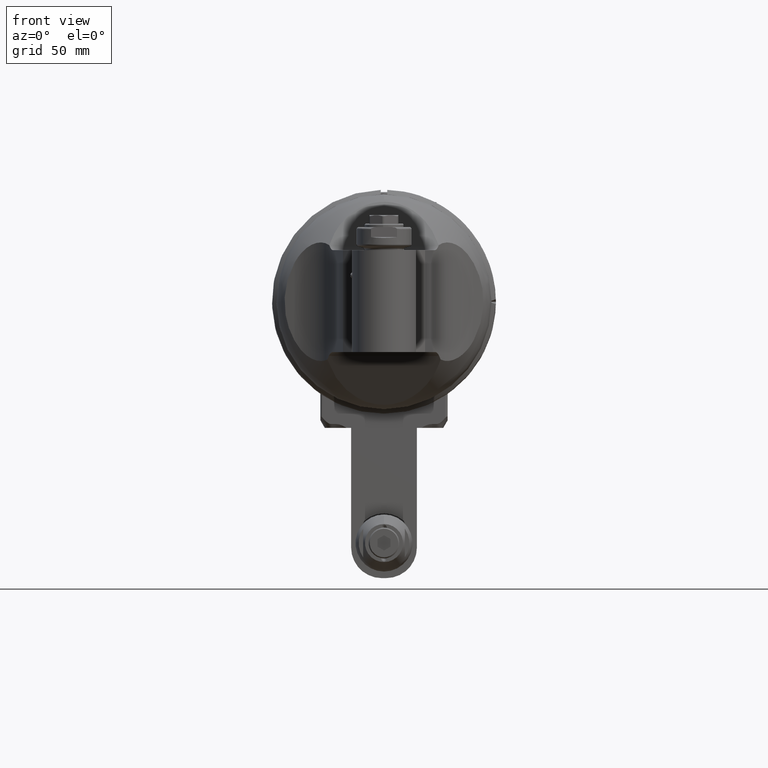
[diagram: clean part render]
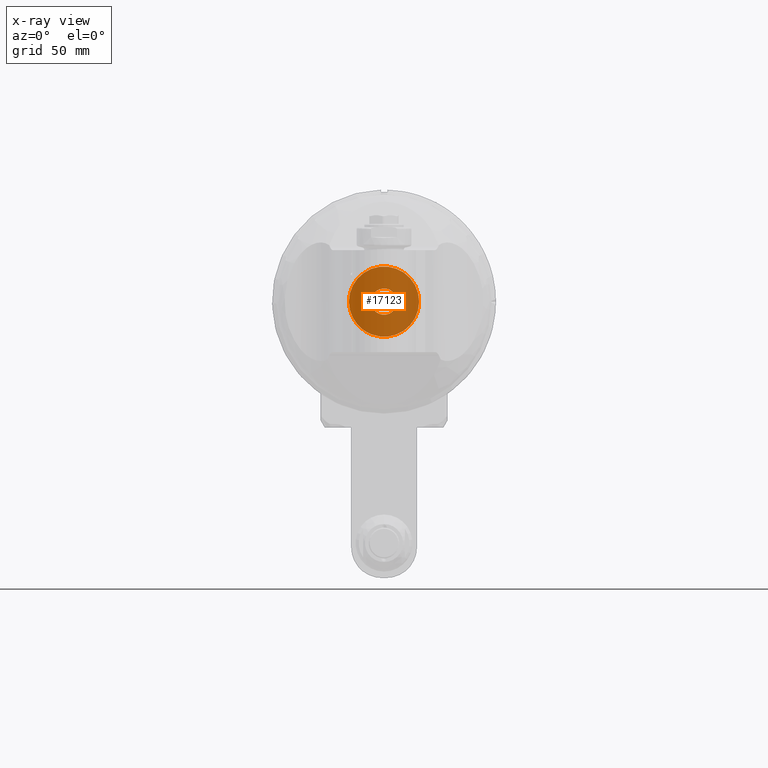
[diagram: x-ray — body ghosted, one internal face saturated and labeled with its STEP entity id]
A machine part, front view, then the same camera in x-ray: the body is ghosted and one INTERNAL B-rep face — a face not visible from any outside direction — is saturated and labeled: STEP entity #17123.
In plain terms, the highlighted planar face has unit normal (0, 1, 0).
Its self-contained STEP definition (entity closure, byte-faithful):
#4348=CARTESIAN_POINT('',(0.E0,1.48E2,0.E0));
#4349=DIRECTION('',(0.E0,-1.E0,0.E0));
#4350=DIRECTION('',(-1.E0,0.E0,0.E0));
#4351=AXIS2_PLACEMENT_3D('',#4348,#4349,#4350);
#4353=CARTESIAN_POINT('',(0.E0,1.48E2,0.E0));
#4354=DIRECTION('',(0.E0,-1.E0,0.E0));
#4355=DIRECTION('',(1.E0,0.E0,0.E0));
#4356=AXIS2_PLACEMENT_3D('',#4353,#4354,#4355);
#4358=CARTESIAN_POINT('',(0.E0,1.48E2,8.881784206994E-12));
#4359=DIRECTION('',(0.E0,1.E0,-3.552713678797E-13));
#4360=DIRECTION('',(-1.E0,0.E0,0.E0));
#4361=AXIS2_PLACEMENT_3D('',#4358,#4359,#4360);
#4363=CARTESIAN_POINT('',(0.E0,1.48E2,8.881784206993E-12));
#4364=DIRECTION('',(0.E0,1.E0,-3.552713678797E-13));
#4365=DIRECTION('',(1.E0,0.E0,0.E0));
#4366=AXIS2_PLACEMENT_3D('',#4363,#4364,#4365);
#12375=CARTESIAN_POINT('',(-1.6E1,1.48E2,0.E0));
#12376=CARTESIAN_POINT('',(1.6E1,1.48E2,0.E0));
#12377=VERTEX_POINT('',#12375);
#12378=VERTEX_POINT('',#12376);
#12521=CARTESIAN_POINT('',(-6.E0,1.48E2,8.885336910681E-12));
#12522=CARTESIAN_POINT('',(6.E0,1.48E2,8.881630826647E-12));
#12523=VERTEX_POINT('',#12521);
#12524=VERTEX_POINT('',#12522);
#17107=CARTESIAN_POINT('',(0.E0,1.48E2,-3.075E1));
#17108=DIRECTION('',(0.E0,1.E0,0.E0));
#17109=DIRECTION('',(0.E0,0.E0,-1.E0));
#17110=AXIS2_PLACEMENT_3D('',#17107,#17108,#17109);
#17111=PLANE('',#17110);
#17112=ORIENTED_EDGE('',*,*,#17097,.T.);
#17114=ORIENTED_EDGE('',*,*,#17113,.T.);
#17115=EDGE_LOOP('',(#17112,#17114));
#17116=FACE_OUTER_BOUND('',#17115,.F.);
#17118=ORIENTED_EDGE('',*,*,#17117,.T.);
#17120=ORIENTED_EDGE('',*,*,#17119,.T.);
#17121=EDGE_LOOP('',(#17118,#17120));
#17122=FACE_BOUND('',#17121,.F.);
#17123=ADVANCED_FACE('',(#17116,#17122),#17111,.T.);
#4352=CIRCLE('',#4351,1.6E1);
#4357=CIRCLE('',#4356,1.6E1);
#4362=CIRCLE('',#4361,6.E0);
#4367=CIRCLE('',#4366,6.E0);
#17097=EDGE_CURVE('',#12377,#12378,#4352,.T.);
#17113=EDGE_CURVE('',#12378,#12377,#4357,.T.);
#17117=EDGE_CURVE('',#12523,#12524,#4362,.T.);
#17119=EDGE_CURVE('',#12524,#12523,#4367,.T.);